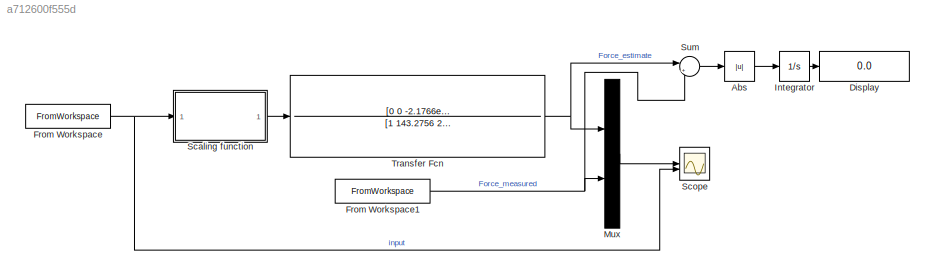
MODEL slx_a712600f555d
KIND model
CONFIG AbsTol = auto
CONFIG EnableMultiTasking = off
CONFIG FixedStep = auto
CONFIG MaxStep = auto
CONFIG MinStep = auto
CONFIG RelTol = 1e-3
CONFIG SampleTimeConstraint = Unconstrained
CONFIG SolverName = VariableStepAuto
CONFIG StartTime = 0.0
CONFIG StopTime = 10
BLOCK [Abs] Abs
  SaturateOnIntegerOverflow = off
BLOCK [Display] Display
  Decimation = 1
BLOCK [FromWorkspace] From Workspace
  SampleTime = 0.002
  VariableName = input_sq_TimeSeries
BLOCK [FromWorkspace] From Workspace1
  SampleTime = 0.002
  VariableName = force_sq_TimeSeries
BLOCK [Integrator] Integrator
BLOCK [Mux] Mux
  DisplayOption = bar
  Inputs = 2
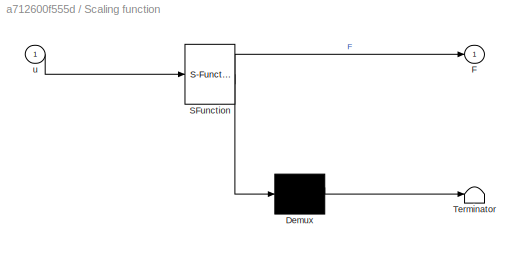
BLOCK [SubSystem] Scaling function
  ErrorFcn = Stateflow.Translate.translate
  PermitHierarchicalResolution = ExplicitOnly
  SFBlockType = MATLAB Function
  TreatAsAtomicUnit = on
BLOCK [Demux] Scaling function/ Demux 
  Outputs = 1
BLOCK [S-Function] Scaling function/ SFunction 
  EnableBusSupport = on
  FunctionName = sf_sfun
  PortCounts = [1 2]
  SFcnIsStateOwnerBlock = off
  SFunctionDeploymentMode = off
  Tag = Stateflow S-Function 2
BLOCK [Terminator] Scaling function/ Terminator 
BLOCK [Outport] Scaling function/F
BLOCK [Inport] Scaling function/u
BLOCK [Scope] Scope
  Floating = off
  NumInputPorts = 2
  ScopeSpecificationString = Simulink.scopes.TimeScopeBlockCfg('CurrentConfiguration', extmgr.ConfigurationSet(extmgr.Configuration('Core','General UI',true,'FigureColor',[1 1 1]),extmgr.Configuration('Core','Source UI',true),extmgr.Configuration('Sources','WiredSimulink',true),extmgr.Configuration('Visuals','Time Domain',true,'SerializedDisplays',{struct('MinYLimReal','-37.93298','MaxYLimReal','83.21865','YLabelReal','','Min...<+2373ch>
BLOCK [Sum] Sum
  Inputs = |+-
BLOCK [TransferFcn] Transfer Fcn
  Denominator = [1 143.2756 2.9302e+04 2.6574e+06]
  Numerator = [0 0 -2.1766e+03 2.6574e+06]
LINE Abs:1 -> Integrator:1
NET From Workspace1:1 -> Mux:2, Sum:2
NET From Workspace:1 -> Scaling function:1, Scope:2
LINE Integrator:1 -> Display:1
LINE Mux:1 -> Scope:1
LINE Scaling function:1 -> Transfer Fcn:1
LINE Sum:1 -> Abs:1
NET Transfer Fcn:1 -> Mux:1, Sum:1
note: NET lines group one-source signal fan-out (src -> all destinations, sorted); 1:1 wires keep LINE
CHART Scaling function states=1 transitions=1
  STATE_LABEL 'eML_blk_kernel()'
  STATE_LABEL 'SCRIPT:\nfunction F = fcn(u)\n%16V\n%p =  [-148.575215521583\t-6.01951344606880\t347.062027953365\t14.7939725163702\t-299.865931981745\t-13.0166356354772\t134.177990099770\t10.1629233711657\t12.7092879704266\t-0.0232735493306251];\n\n%14 V\np = [-111.940783464042\t-6.65861599537878\t269.823430407384\t13.8659958797022\t-243.064927768226\t-10.2880091499065\t114.063389337106\t8.09188399656116\t10.6145211900378\t-0.00];\n\nF =...<+15ch>'
CHART  states=0 transitions=0
